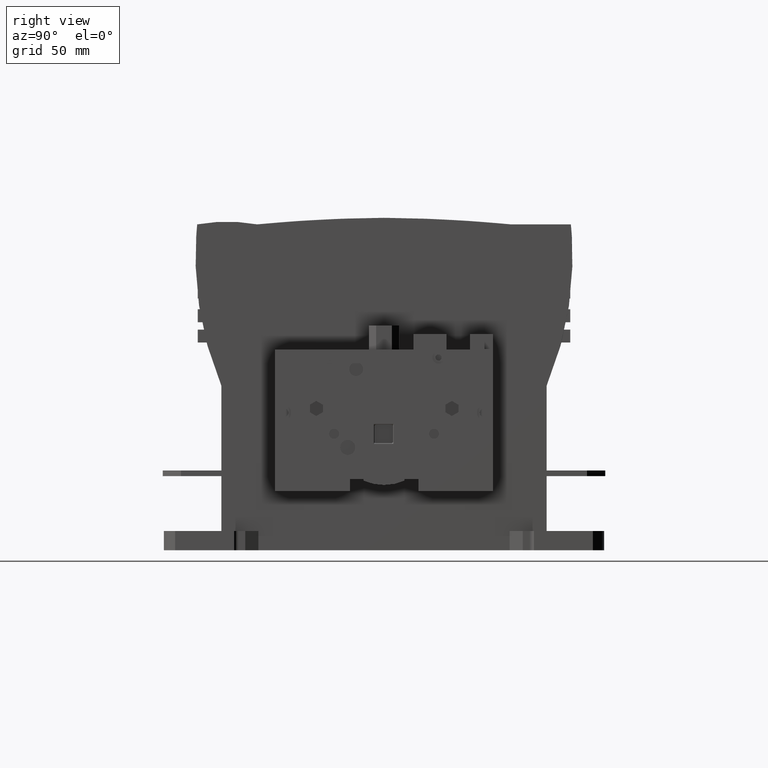
[diagram: clean part render]
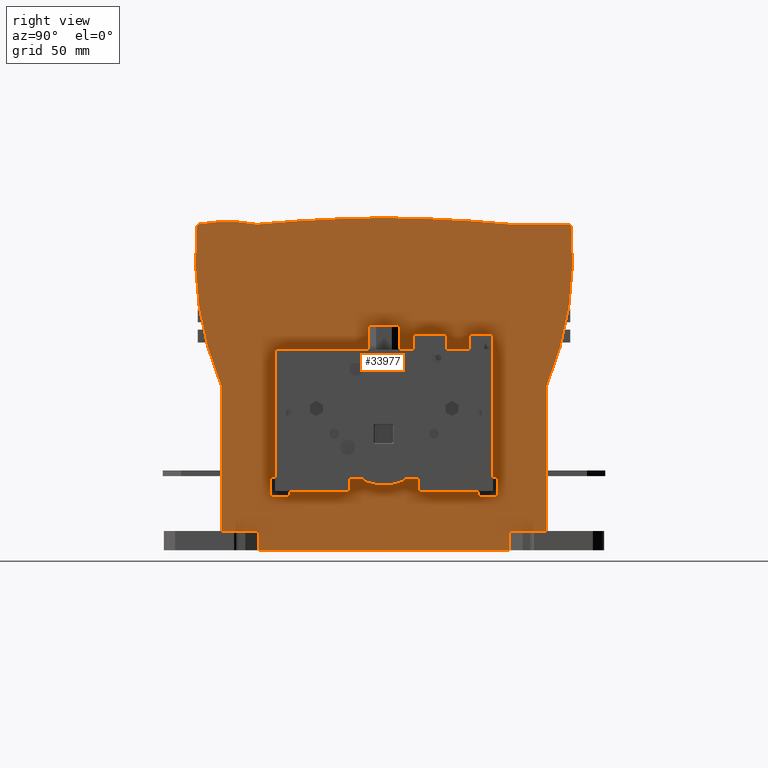
[diagram: same view with one face highlighted and labeled with its STEP entity id]
A machine part, right view. The second image highlights one B-rep face of the part: STEP entity #33977.
In plain terms, the highlighted planar face has unit normal (1, 0, 0).
Its self-contained STEP definition (entity closure, byte-faithful):
#1052=DIRECTION('',(0.E0,1.E0,0.E0));
#1053=VECTOR('',#1052,2.007628822828E1);
#1054=CARTESIAN_POINT('',(1.01213E2,6.806171177172E1,-7.8744E1));
#1055=LINE('',#1054,#1053);
#7930=DIRECTION('',(0.E0,1.E0,0.E0));
#7931=VECTOR('',#7930,1.361234235434E2);
#7932=CARTESIAN_POINT('',(1.01213E2,-6.806171177172E1,-8.9154E1));
#7933=LINE('',#7932,#7931);
#7934=DIRECTION('',(0.E0,0.E0,-1.E0));
#7935=VECTOR('',#7934,7.8744E1);
#7936=CARTESIAN_POINT('',(1.01213E2,-8.8138E1,1.062152052044E-13));
#7937=LINE('',#7936,#7935);
#7938=CARTESIAN_POINT('',(1.01213E2,7.798528822828E1,6.952712063808E1));
#7939=DIRECTION('',(1.E0,0.E0,0.E0));
#7940=DIRECTION('',(0.E0,-9.950761759842E-1,9.911308686915E-2));
#7941=AXIS2_PLACEMENT_3D('',#7938,#7939,#7940);
#7943=CARTESIAN_POINT('',(1.01213E2,-8.4958E1,-1.489392949112E0));
#7944=DIRECTION('',(1.E0,0.E0,0.E0));
#7945=DIRECTION('',(0.E0,1.799424396724E-1,9.836771413450E-1));
#7946=AXIS2_PLACEMENT_3D('',#7943,#7944,#7945);
#7948=CARTESIAN_POINT('',(1.01213E2,6.336892889530E0,-6.970429980832E2));
#7949=DIRECTION('',(1.E0,0.E0,0.E0));
#7950=DIRECTION('',(0.E0,-8.041742245596E-3,9.999676646680E-1));
#7951=AXIS2_PLACEMENT_3D('',#7948,#7949,#7950);
#7953=CARTESIAN_POINT('',(1.01213E2,-6.336892889530E0,-6.970429980832E2));
#7954=DIRECTION('',(1.E0,0.E0,0.E0));
#7955=DIRECTION('',(0.E0,9.522702143341E-2,9.954555813239E-1));
#7956=AXIS2_PLACEMENT_3D('',#7953,#7954,#7955);
#7958=DIRECTION('',(0.E0,-1.E0,0.E0));
#7959=VECTOR('',#7958,3.2512E1);
#7960=CARTESIAN_POINT('',(1.01213E2,1.01214E2,8.7376E1));
#7961=LINE('',#7960,#7959);
#7962=CARTESIAN_POINT('',(1.01213E2,-7.798528822828E1,6.952712063808E1));
#7963=DIRECTION('',(1.E0,0.E0,0.E0));
#7964=DIRECTION('',(0.E0,9.224664228662E-1,-3.860773221576E-1));
#7965=AXIS2_PLACEMENT_3D('',#7962,#7963,#7964);
#7967=DIRECTION('',(0.E0,0.E0,1.E0));
#7968=VECTOR('',#7967,7.8744E1);
#7969=CARTESIAN_POINT('',(1.01213E2,8.8138E1,-7.8744E1));
#7970=LINE('',#7969,#7968);
#7971=DIRECTION('',(0.E0,-1.E0,0.E0));
#7972=VECTOR('',#7971,4.5E0);
#7973=CARTESIAN_POINT('',(1.01213E2,5.8928E1,1.9647E1));
#7974=LINE('',#7973,#7972);
#7975=DIRECTION('',(0.E0,-1.E0,0.E0));
#7976=VECTOR('',#7975,8.E0);
#7977=CARTESIAN_POINT('',(1.01213E2,5.4428E1,2.7882E1));
#7978=LINE('',#7977,#7976);
#7979=DIRECTION('',(0.E0,0.E0,1.E0));
#7980=VECTOR('',#7979,8.328E0);
#7981=CARTESIAN_POINT('',(1.01213E2,4.6428E1,1.9554E1));
#7982=LINE('',#7981,#7980);
#7983=DIRECTION('',(0.E0,1.E0,0.E0));
#7984=VECTOR('',#7983,1.25E1);
#7985=CARTESIAN_POINT('',(1.01213E2,3.3928E1,1.9554E1));
#7986=LINE('',#7985,#7984);
#7987=DIRECTION('',(0.E0,0.E0,-1.E0));
#7988=VECTOR('',#7987,8.328E0);
#7989=CARTESIAN_POINT('',(1.01213E2,3.3928E1,2.7882E1));
#7990=LINE('',#7989,#7988);
#7991=DIRECTION('',(0.E0,-1.E0,0.E0));
#7992=VECTOR('',#7991,1.7926E1);
#7993=CARTESIAN_POINT('',(1.01213E2,3.3928E1,2.7882E1));
#7994=LINE('',#7993,#7992);
#7995=DIRECTION('',(0.E0,0.E0,-1.E0));
#7996=VECTOR('',#7995,8.328E0);
#7997=CARTESIAN_POINT('',(1.01213E2,1.6002E1,2.7882E1));
#7998=LINE('',#7997,#7996);
#7999=DIRECTION('',(0.E0,0.E0,-1.E0));
#8000=VECTOR('',#7999,1.041E1);
#8001=CARTESIAN_POINT('',(1.01213E2,6.806171177172E1,-7.8744E1));
#8002=LINE('',#8001,#8000);
#8039=DIRECTION('',(0.E0,0.E0,-1.E0));
#8040=VECTOR('',#8039,1.041E1);
#8041=CARTESIAN_POINT('',(1.01213E2,-6.806171177172E1,-7.8744E1));
#8042=LINE('',#8041,#8040);
#8995=DIRECTION('',(0.E0,-1.E0,0.E0));
#8996=VECTOR('',#8995,2.007628822828E1);
#8997=CARTESIAN_POINT('',(1.01213E2,-6.806171177172E1,-7.8744E1));
#8998=LINE('',#8997,#8996);
#9171=DIRECTION('',(0.E0,0.E0,-1.E0));
#9172=VECTOR('',#9171,6.9381E1);
#9173=CARTESIAN_POINT('',(1.01213E2,5.8928E1,1.9647E1));
#9174=LINE('',#9173,#9172);
#10124=DIRECTION('',(0.E0,0.E0,1.E0));
#10125=VECTOR('',#10124,8.235E0);
#10126=CARTESIAN_POINT('',(1.01213E2,5.4428E1,1.9647E1));
#10127=LINE('',#10126,#10125);
#10180=DIRECTION('',(0.E0,-1.E0,0.E0));
#10181=VECTOR('',#10180,7.5074E1);
#10182=CARTESIAN_POINT('',(1.01213E2,1.6002E1,1.9554E1));
#10183=LINE('',#10182,#10181);
#10216=DIRECTION('',(0.E0,0.E0,-1.E0));
#10217=VECTOR('',#10216,6.9096E1);
#10218=CARTESIAN_POINT('',(1.01213E2,-5.9072E1,1.9554E1));
#10219=LINE('',#10218,#10217);
#10232=DIRECTION('',(0.E0,1.E0,0.E0));
#10233=VECTOR('',#10232,3.2966E1);
#10234=CARTESIAN_POINT('',(1.01213E2,-5.1508E1,-5.7154E1));
#10235=LINE('',#10234,#10233);
#10252=DIRECTION('',(0.E0,1.E0,0.E0));
#10253=VECTOR('',#10252,3.2966E1);
#10254=CARTESIAN_POINT('',(1.01213E2,1.8542E1,-5.7154E1));
#10255=LINE('',#10254,#10253);
#10268=CARTESIAN_POINT('',(1.01213E2,-5.1508E1,-5.7354E1));
#10269=DIRECTION('',(-1.E0,0.E0,0.E0));
#10270=DIRECTION('',(0.E0,0.E0,1.E0));
#10271=AXIS2_PLACEMENT_3D('',#10268,#10269,#10270);
#10273=DIRECTION('',(0.E0,0.E0,-1.E0));
#10274=VECTOR('',#10273,2.394E0);
#10275=CARTESIAN_POINT('',(1.01213E2,-5.1308E1,-5.7354E1));
#10276=LINE('',#10275,#10274);
#10281=CARTESIAN_POINT('',(1.01213E2,-5.1508E1,-5.9748E1));
#10282=DIRECTION('',(-1.E0,0.E0,0.E0));
#10283=DIRECTION('',(0.E0,1.E0,0.E0));
#10284=AXIS2_PLACEMENT_3D('',#10281,#10282,#10283);
#10290=DIRECTION('',(0.E0,-1.E0,0.E0));
#10291=VECTOR('',#10290,1.0014E1);
#10292=CARTESIAN_POINT('',(1.01213E2,-5.1508E1,-5.9948E1));
#10293=LINE('',#10292,#10291);
#10302=CARTESIAN_POINT('',(1.01213E2,-6.1522E1,-5.9748E1));
#10303=DIRECTION('',(-1.E0,0.E0,0.E0));
#10304=DIRECTION('',(0.E0,0.E0,-1.E0));
#10305=AXIS2_PLACEMENT_3D('',#10302,#10303,#10304);
#10311=DIRECTION('',(0.E0,0.E0,1.E0));
#10312=VECTOR('',#10311,1.0014E1);
#10313=CARTESIAN_POINT('',(1.01213E2,-6.1722E1,-5.9748E1));
#10314=LINE('',#10313,#10312);
#10319=CARTESIAN_POINT('',(1.01213E2,-6.1522E1,-4.9734E1));
#10320=DIRECTION('',(-1.E0,0.E0,0.E0));
#10321=DIRECTION('',(0.E0,-1.E0,0.E0));
#10322=AXIS2_PLACEMENT_3D('',#10319,#10320,#10321);
#10328=DIRECTION('',(0.E0,1.E0,0.E0));
#10329=VECTOR('',#10328,2.394E0);
#10330=CARTESIAN_POINT('',(1.01213E2,-6.1522E1,-4.9534E1));
#10331=LINE('',#10330,#10329);
#10336=CARTESIAN_POINT('',(1.01213E2,-5.9128E1,-4.9734E1));
#10337=DIRECTION('',(-1.E0,0.E0,0.E0));
#10338=DIRECTION('',(0.E0,0.E0,1.E0));
#10339=AXIS2_PLACEMENT_3D('',#10336,#10337,#10338);
#10382=DIRECTION('',(0.E0,0.E0,-1.E0));
#10383=VECTOR('',#10382,6.604E0);
#10384=CARTESIAN_POINT('',(1.01213E2,-1.8542E1,-5.055E1));
#10385=LINE('',#10384,#10383);
#10390=DIRECTION('',(0.E0,-1.E0,0.E0));
#10391=VECTOR('',#10390,7.366E0);
#10392=CARTESIAN_POINT('',(1.01213E2,-1.1176E1,-5.055E1));
#10393=LINE('',#10392,#10391);
#10398=DIRECTION('',(0.E0,0.E0,1.E0));
#10399=VECTOR('',#10398,1.E0);
#10400=CARTESIAN_POINT('',(1.01213E2,-1.1176E1,-5.155E1));
#10401=LINE('',#10400,#10399);
#10406=CARTESIAN_POINT('',(1.01213E2,0.E0,-2.594256701659E1));
#10407=DIRECTION('',(1.E0,0.E0,0.E0));
#10408=DIRECTION('',(0.E0,-4.E-1,-9.165151389912E-1));
#10409=AXIS2_PLACEMENT_3D('',#10406,#10407,#10408);
#10415=DIRECTION('',(0.E0,0.E0,-1.E0));
#10416=VECTOR('',#10415,1.E0);
#10417=CARTESIAN_POINT('',(1.01213E2,1.1176E1,-5.055E1));
#10418=LINE('',#10417,#10416);
#10423=DIRECTION('',(0.E0,-1.E0,0.E0));
#10424=VECTOR('',#10423,7.366E0);
#10425=CARTESIAN_POINT('',(1.01213E2,1.8542E1,-5.055E1));
#10426=LINE('',#10425,#10424);
#10431=DIRECTION('',(0.E0,0.E0,1.E0));
#10432=VECTOR('',#10431,6.604E0);
#10433=CARTESIAN_POINT('',(1.01213E2,1.8542E1,-5.7154E1));
#10434=LINE('',#10433,#10432);
#10472=CARTESIAN_POINT('',(1.01213E2,5.9128E1,-4.9734E1));
#10473=DIRECTION('',(1.E0,0.E0,0.E0));
#10474=DIRECTION('',(0.E0,0.E0,1.E0));
#10475=AXIS2_PLACEMENT_3D('',#10472,#10473,#10474);
#10481=DIRECTION('',(0.E0,-1.E0,0.E0));
#10482=VECTOR('',#10481,2.394E0);
#10483=CARTESIAN_POINT('',(1.01213E2,6.1522E1,-4.9534E1));
#10484=LINE('',#10483,#10482);
#10489=CARTESIAN_POINT('',(1.01213E2,6.1522E1,-4.9734E1));
#10490=DIRECTION('',(1.E0,0.E0,0.E0));
#10491=DIRECTION('',(0.E0,1.E0,0.E0));
#10492=AXIS2_PLACEMENT_3D('',#10489,#10490,#10491);
#10498=DIRECTION('',(0.E0,0.E0,1.E0));
#10499=VECTOR('',#10498,1.0014E1);
#10500=CARTESIAN_POINT('',(1.01213E2,6.1722E1,-5.9748E1));
#10501=LINE('',#10500,#10499);
#10506=CARTESIAN_POINT('',(1.01213E2,6.1522E1,-5.9748E1));
#10507=DIRECTION('',(1.E0,0.E0,0.E0));
#10508=DIRECTION('',(0.E0,0.E0,-1.E0));
#10509=AXIS2_PLACEMENT_3D('',#10506,#10507,#10508);
#10515=DIRECTION('',(0.E0,1.E0,0.E0));
#10516=VECTOR('',#10515,1.0014E1);
#10517=CARTESIAN_POINT('',(1.01213E2,5.1508E1,-5.9948E1));
#10518=LINE('',#10517,#10516);
#10527=CARTESIAN_POINT('',(1.01213E2,5.1508E1,-5.9748E1));
#10528=DIRECTION('',(1.E0,0.E0,0.E0));
#10529=DIRECTION('',(0.E0,-1.E0,0.E0));
#10530=AXIS2_PLACEMENT_3D('',#10527,#10528,#10529);
#10536=DIRECTION('',(0.E0,0.E0,-1.E0));
#10537=VECTOR('',#10536,2.394E0);
#10538=CARTESIAN_POINT('',(1.01213E2,5.1308E1,-5.7354E1));
#10539=LINE('',#10538,#10537);
#10544=CARTESIAN_POINT('',(1.01213E2,5.1508E1,-5.7354E1));
#10545=DIRECTION('',(1.E0,0.E0,0.E0));
#10546=DIRECTION('',(0.E0,0.E0,1.E0));
#10547=AXIS2_PLACEMENT_3D('',#10544,#10545,#10546);
#26880=CARTESIAN_POINT('',(1.01213E2,8.8138E1,-2.842170943040E-14));
#26881=CARTESIAN_POINT('',(1.01213E2,1.01214E2,8.7376E1));
#26882=VERTEX_POINT('',#26880);
#26883=VERTEX_POINT('',#26881);
#26884=CARTESIAN_POINT('',(1.01213E2,6.8702E1,8.7376E1));
#26885=VERTEX_POINT('',#26884);
#26886=CARTESIAN_POINT('',(1.01213E2,2.842170943040E-13,9.093152167518E1));
#26887=VERTEX_POINT('',#26886);
#26888=CARTESIAN_POINT('',(1.01213E2,-6.8702E1,8.7376E1));
#26889=VERTEX_POINT('',#26888);
#26890=CARTESIAN_POINT('',(1.01213E2,-1.01214E2,8.7376E1));
#26891=VERTEX_POINT('',#26890);
#26892=CARTESIAN_POINT('',(1.01213E2,-8.8138E1,8.526512829121E-14));
#26893=VERTEX_POINT('',#26892);
#26894=CARTESIAN_POINT('',(1.01213E2,6.806171177172E1,-7.8744E1));
#26895=CARTESIAN_POINT('',(1.01213E2,8.8138E1,-7.8744E1));
#26896=VERTEX_POINT('',#26894);
#26897=VERTEX_POINT('',#26895);
#26898=CARTESIAN_POINT('',(1.01213E2,6.806171177172E1,-8.9154E1));
#26899=VERTEX_POINT('',#26898);
#26900=CARTESIAN_POINT('',(1.01213E2,-6.806171177172E1,-7.8744E1));
#26901=CARTESIAN_POINT('',(1.01213E2,-8.8138E1,-7.8744E1));
#26902=VERTEX_POINT('',#26900);
#26903=VERTEX_POINT('',#26901);
#26904=CARTESIAN_POINT('',(1.01213E2,-6.806171177172E1,-8.9154E1));
#26905=VERTEX_POINT('',#26904);
#26906=CARTESIAN_POINT('',(1.01213E2,-5.9072E1,1.9554E1));
#26907=CARTESIAN_POINT('',(1.01213E2,-5.9072E1,-4.9542E1));
#26908=VERTEX_POINT('',#26906);
#26909=VERTEX_POINT('',#26907);
#26910=CARTESIAN_POINT('',(1.01213E2,-5.1508E1,-5.7154E1));
#26911=CARTESIAN_POINT('',(1.01213E2,-1.8542E1,-5.7154E1));
#26912=VERTEX_POINT('',#26910);
#26913=VERTEX_POINT('',#26911);
#26914=CARTESIAN_POINT('',(1.01213E2,1.8542E1,-5.7154E1));
#26915=CARTESIAN_POINT('',(1.01213E2,5.1508E1,-5.7154E1));
#26916=VERTEX_POINT('',#26914);
#26917=VERTEX_POINT('',#26915);
#26918=CARTESIAN_POINT('',(1.01213E2,1.8542E1,-5.055E1));
#26919=VERTEX_POINT('',#26918);
#26920=CARTESIAN_POINT('',(1.01213E2,1.1176E1,-5.055E1));
#26921=VERTEX_POINT('',#26920);
#26922=CARTESIAN_POINT('',(1.01213E2,1.1176E1,-5.155E1));
#26923=VERTEX_POINT('',#26922);
#26924=CARTESIAN_POINT('',(1.01213E2,-1.1176E1,-5.155E1));
#26925=VERTEX_POINT('',#26924);
#26926=CARTESIAN_POINT('',(1.01213E2,-1.1176E1,-5.055E1));
#26927=VERTEX_POINT('',#26926);
#26928=CARTESIAN_POINT('',(1.01213E2,-1.8542E1,-5.055E1));
#26929=VERTEX_POINT('',#26928);
#26930=CARTESIAN_POINT('',(1.01213E2,5.1308E1,-5.7354E1));
#26931=VERTEX_POINT('',#26930);
#26932=CARTESIAN_POINT('',(1.01213E2,5.1308E1,-5.9748E1));
#26933=VERTEX_POINT('',#26932);
#26934=CARTESIAN_POINT('',(1.01213E2,5.1508E1,-5.9948E1));
#26935=VERTEX_POINT('',#26934);
#26936=CARTESIAN_POINT('',(1.01213E2,6.1522E1,-5.9948E1));
#26937=VERTEX_POINT('',#26936);
#26938=CARTESIAN_POINT('',(1.01213E2,6.1722E1,-5.9748E1));
#26939=VERTEX_POINT('',#26938);
#26940=CARTESIAN_POINT('',(1.01213E2,6.1722E1,-4.9734E1));
#26941=VERTEX_POINT('',#26940);
#26942=CARTESIAN_POINT('',(1.01213E2,6.1522E1,-4.9534E1));
#26943=VERTEX_POINT('',#26942);
#26944=CARTESIAN_POINT('',(1.01213E2,5.9128E1,-4.9534E1));
#26945=VERTEX_POINT('',#26944);
#26946=CARTESIAN_POINT('',(1.01213E2,5.8928E1,-4.9734E1));
#26947=VERTEX_POINT('',#26946);
#26948=CARTESIAN_POINT('',(1.01213E2,-5.1308E1,-5.7354E1));
#26949=VERTEX_POINT('',#26948);
#26950=CARTESIAN_POINT('',(1.01213E2,-5.1308E1,-5.9748E1));
#26951=VERTEX_POINT('',#26950);
#26952=CARTESIAN_POINT('',(1.01213E2,-5.1508E1,-5.9948E1));
#26953=VERTEX_POINT('',#26952);
#26954=CARTESIAN_POINT('',(1.01213E2,-6.1522E1,-5.9948E1));
#26955=VERTEX_POINT('',#26954);
#26956=CARTESIAN_POINT('',(1.01213E2,-6.1722E1,-5.9748E1));
#26957=VERTEX_POINT('',#26956);
#26958=CARTESIAN_POINT('',(1.01213E2,-6.1722E1,-4.9734E1));
#26959=VERTEX_POINT('',#26958);
#26960=CARTESIAN_POINT('',(1.01213E2,-6.1522E1,-4.9534E1));
#26961=VERTEX_POINT('',#26960);
#26962=CARTESIAN_POINT('',(1.01213E2,-5.9128E1,-4.9534E1));
#26963=VERTEX_POINT('',#26962);
#26964=CARTESIAN_POINT('',(1.01213E2,1.6002E1,1.9554E1));
#26966=VERTEX_POINT('',#26964);
#26968=CARTESIAN_POINT('',(1.01213E2,1.6002E1,2.7882E1));
#26969=VERTEX_POINT('',#26968);
#26972=CARTESIAN_POINT('',(1.01213E2,3.3928E1,1.9554E1));
#26973=CARTESIAN_POINT('',(1.01213E2,4.6428E1,1.9554E1));
#26974=VERTEX_POINT('',#26972);
#26975=VERTEX_POINT('',#26973);
#26984=CARTESIAN_POINT('',(1.01213E2,3.3928E1,2.7882E1));
#26985=VERTEX_POINT('',#26984);
#26986=CARTESIAN_POINT('',(1.01213E2,4.6428E1,2.7882E1));
#26987=VERTEX_POINT('',#26986);
#26989=CARTESIAN_POINT('',(1.01213E2,5.4428E1,1.9647E1));
#26991=VERTEX_POINT('',#26989);
#27006=CARTESIAN_POINT('',(1.01213E2,5.8928E1,1.9647E1));
#27007=VERTEX_POINT('',#27006);
#27008=CARTESIAN_POINT('',(1.01213E2,5.4428E1,2.7882E1));
#27010=VERTEX_POINT('',#27008);
#33875=CARTESIAN_POINT('',(1.01213E2,0.E0,0.E0));
#33876=DIRECTION('',(1.E0,0.E0,0.E0));
#33877=DIRECTION('',(0.E0,0.E0,-1.E0));
#33878=AXIS2_PLACEMENT_3D('',#33875,#33876,#33877);
#33879=PLANE('',#33878);
#33880=ORIENTED_EDGE('',*,*,#28558,.F.);
#33882=ORIENTED_EDGE('',*,*,#33881,.T.);
#33883=ORIENTED_EDGE('',*,*,#28653,.F.);
#33885=ORIENTED_EDGE('',*,*,#33884,.F.);
#33887=ORIENTED_EDGE('',*,*,#33886,.T.);
#33889=ORIENTED_EDGE('',*,*,#33888,.F.);
#33890=ORIENTED_EDGE('',*,*,#32503,.F.);
#33891=ORIENTED_EDGE('',*,*,#32489,.F.);
#33892=ORIENTED_EDGE('',*,*,#31968,.F.);
#33893=ORIENTED_EDGE('',*,*,#30458,.F.);
#33894=ORIENTED_EDGE('',*,*,#28921,.F.);
#33895=ORIENTED_EDGE('',*,*,#27071,.F.);
#33896=ORIENTED_EDGE('',*,*,#27151,.F.);
#33897=EDGE_LOOP('',(#33880,#33882,#33883,#33885,#33887,#33889,#33890,#33891,
#33892,#33893,#33894,#33895,#33896));
#33898=FACE_OUTER_BOUND('',#33897,.F.);
#33900=ORIENTED_EDGE('',*,*,#33899,.F.);
#33902=ORIENTED_EDGE('',*,*,#33901,.T.);
#33904=ORIENTED_EDGE('',*,*,#33903,.T.);
#33906=ORIENTED_EDGE('',*,*,#33905,.T.);
#33908=ORIENTED_EDGE('',*,*,#33907,.F.);
#33910=ORIENTED_EDGE('',*,*,#33909,.F.);
#33912=ORIENTED_EDGE('',*,*,#33911,.F.);
#33914=ORIENTED_EDGE('',*,*,#33913,.T.);
#33916=ORIENTED_EDGE('',*,*,#33915,.T.);
#33918=ORIENTED_EDGE('',*,*,#33917,.T.);
#33920=ORIENTED_EDGE('',*,*,#33919,.T.);
#33922=ORIENTED_EDGE('',*,*,#33921,.F.);
#33924=ORIENTED_EDGE('',*,*,#33923,.F.);
#33926=ORIENTED_EDGE('',*,*,#33925,.F.);
#33928=ORIENTED_EDGE('',*,*,#33927,.F.);
#33930=ORIENTED_EDGE('',*,*,#33929,.F.);
#33932=ORIENTED_EDGE('',*,*,#33931,.F.);
#33934=ORIENTED_EDGE('',*,*,#33933,.F.);
#33936=ORIENTED_EDGE('',*,*,#33935,.F.);
#33938=ORIENTED_EDGE('',*,*,#33937,.F.);
#33940=ORIENTED_EDGE('',*,*,#33939,.T.);
#33942=ORIENTED_EDGE('',*,*,#33941,.F.);
#33944=ORIENTED_EDGE('',*,*,#33943,.F.);
#33946=ORIENTED_EDGE('',*,*,#33945,.F.);
#33948=ORIENTED_EDGE('',*,*,#33947,.T.);
#33950=ORIENTED_EDGE('',*,*,#33949,.F.);
#33952=ORIENTED_EDGE('',*,*,#33951,.F.);
#33954=ORIENTED_EDGE('',*,*,#33953,.F.);
#33956=ORIENTED_EDGE('',*,*,#33955,.T.);
#33958=ORIENTED_EDGE('',*,*,#33957,.T.);
#33960=ORIENTED_EDGE('',*,*,#33959,.T.);
#33962=ORIENTED_EDGE('',*,*,#33961,.T.);
#33964=ORIENTED_EDGE('',*,*,#33963,.T.);
#33966=ORIENTED_EDGE('',*,*,#33965,.T.);
#33968=ORIENTED_EDGE('',*,*,#33967,.T.);
#33970=ORIENTED_EDGE('',*,*,#33969,.T.);
#33972=ORIENTED_EDGE('',*,*,#33971,.T.);
#33974=ORIENTED_EDGE('',*,*,#33973,.T.);
#33975=EDGE_LOOP('',(#33900,#33902,#33904,#33906,#33908,#33910,#33912,#33914,
#33916,#33918,#33920,#33922,#33924,#33926,#33928,#33930,#33932,#33934,#33936,
#33938,#33940,#33942,#33944,#33946,#33948,#33950,#33952,#33954,#33956,#33958,
#33960,#33962,#33964,#33966,#33968,#33970,#33972,#33974));
#33976=FACE_BOUND('',#33975,.F.);
#33977=ADVANCED_FACE('',(#33898,#33976),#33879,.T.);
#7942=CIRCLE('',#7941,1.80086E2);
#7947=CIRCLE('',#7946,9.034E1);
#7952=CIRCLE('',#7951,7.88E2);
#7957=CIRCLE('',#7956,7.88E2);
#7966=CIRCLE('',#7965,1.80086E2);
#10272=CIRCLE('',#10271,2.E-1);
#10285=CIRCLE('',#10284,2.E-1);
#10306=CIRCLE('',#10305,2.E-1);
#10323=CIRCLE('',#10322,2.E-1);
#10340=CIRCLE('',#10339,2.E-1);
#10410=CIRCLE('',#10409,2.794E1);
#10476=CIRCLE('',#10475,2.E-1);
#10493=CIRCLE('',#10492,2.E-1);
#10510=CIRCLE('',#10509,2.E-1);
#10531=CIRCLE('',#10530,2.E-1);
#10548=CIRCLE('',#10547,2.E-1);
#27071=EDGE_CURVE('',#26882,#26883,#7966,.T.);
#27151=EDGE_CURVE('',#26897,#26882,#7970,.T.);
#28558=EDGE_CURVE('',#26896,#26897,#1055,.T.);
#28653=EDGE_CURVE('',#26905,#26899,#7933,.T.);
#28921=EDGE_CURVE('',#26883,#26885,#7961,.T.);
#30458=EDGE_CURVE('',#26885,#26887,#7957,.T.);
#31968=EDGE_CURVE('',#26887,#26889,#7952,.T.);
#32489=EDGE_CURVE('',#26889,#26891,#7947,.T.);
#32503=EDGE_CURVE('',#26891,#26893,#7942,.T.);
#33881=EDGE_CURVE('',#26896,#26899,#8002,.T.);
#33884=EDGE_CURVE('',#26902,#26905,#8042,.T.);
#33886=EDGE_CURVE('',#26902,#26903,#8998,.T.);
#33888=EDGE_CURVE('',#26893,#26903,#7937,.T.);
#33899=EDGE_CURVE('',#27007,#26947,#9174,.T.);
#33901=EDGE_CURVE('',#27007,#26991,#7974,.T.);
#33903=EDGE_CURVE('',#26991,#27010,#10127,.T.);
#33905=EDGE_CURVE('',#27010,#26987,#7978,.T.);
#33907=EDGE_CURVE('',#26975,#26987,#7982,.T.);
#33909=EDGE_CURVE('',#26974,#26975,#7986,.T.);
#33911=EDGE_CURVE('',#26985,#26974,#7990,.T.);
#33913=EDGE_CURVE('',#26985,#26969,#7994,.T.);
#33915=EDGE_CURVE('',#26969,#26966,#7998,.T.);
#33917=EDGE_CURVE('',#26966,#26908,#10183,.T.);
#33919=EDGE_CURVE('',#26908,#26909,#10219,.T.);
#33921=EDGE_CURVE('',#26963,#26909,#10340,.T.);
#33923=EDGE_CURVE('',#26961,#26963,#10331,.T.);
#33925=EDGE_CURVE('',#26959,#26961,#10323,.T.);
#33927=EDGE_CURVE('',#26957,#26959,#10314,.T.);
#33929=EDGE_CURVE('',#26955,#26957,#10306,.T.);
#33931=EDGE_CURVE('',#26953,#26955,#10293,.T.);
#33933=EDGE_CURVE('',#26951,#26953,#10285,.T.);
#33935=EDGE_CURVE('',#26949,#26951,#10276,.T.);
#33937=EDGE_CURVE('',#26912,#26949,#10272,.T.);
#33939=EDGE_CURVE('',#26912,#26913,#10235,.T.);
#33941=EDGE_CURVE('',#26929,#26913,#10385,.T.);
#33943=EDGE_CURVE('',#26927,#26929,#10393,.T.);
#33945=EDGE_CURVE('',#26925,#26927,#10401,.T.);
#33947=EDGE_CURVE('',#26925,#26923,#10410,.T.);
#33949=EDGE_CURVE('',#26921,#26923,#10418,.T.);
#33951=EDGE_CURVE('',#26919,#26921,#10426,.T.);
#33953=EDGE_CURVE('',#26916,#26919,#10434,.T.);
#33955=EDGE_CURVE('',#26916,#26917,#10255,.T.);
#33957=EDGE_CURVE('',#26917,#26931,#10548,.T.);
#33959=EDGE_CURVE('',#26931,#26933,#10539,.T.);
#33961=EDGE_CURVE('',#26933,#26935,#10531,.T.);
#33963=EDGE_CURVE('',#26935,#26937,#10518,.T.);
#33965=EDGE_CURVE('',#26937,#26939,#10510,.T.);
#33967=EDGE_CURVE('',#26939,#26941,#10501,.T.);
#33969=EDGE_CURVE('',#26941,#26943,#10493,.T.);
#33971=EDGE_CURVE('',#26943,#26945,#10484,.T.);
#33973=EDGE_CURVE('',#26945,#26947,#10476,.T.);